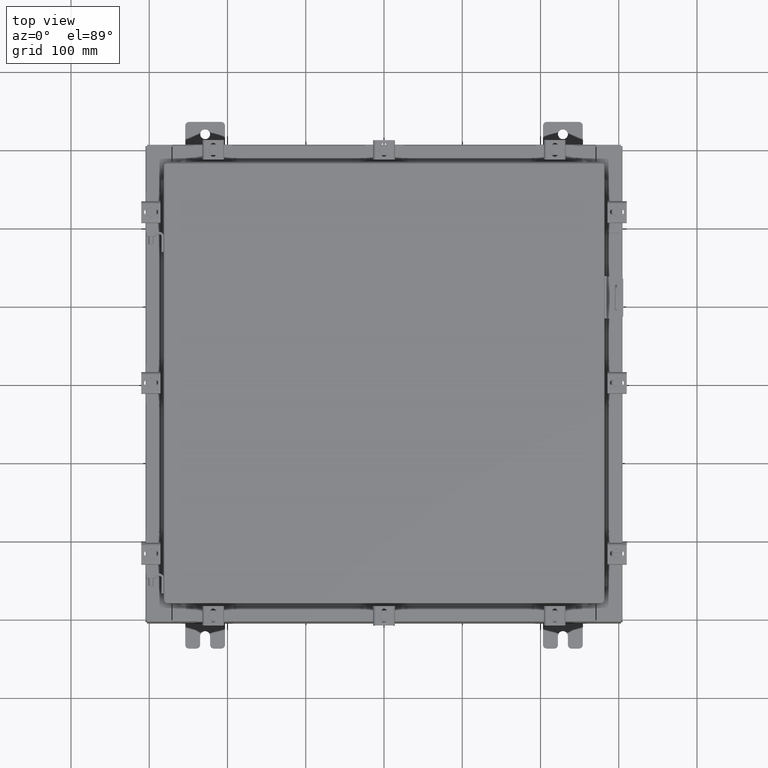
[diagram: clean part render]
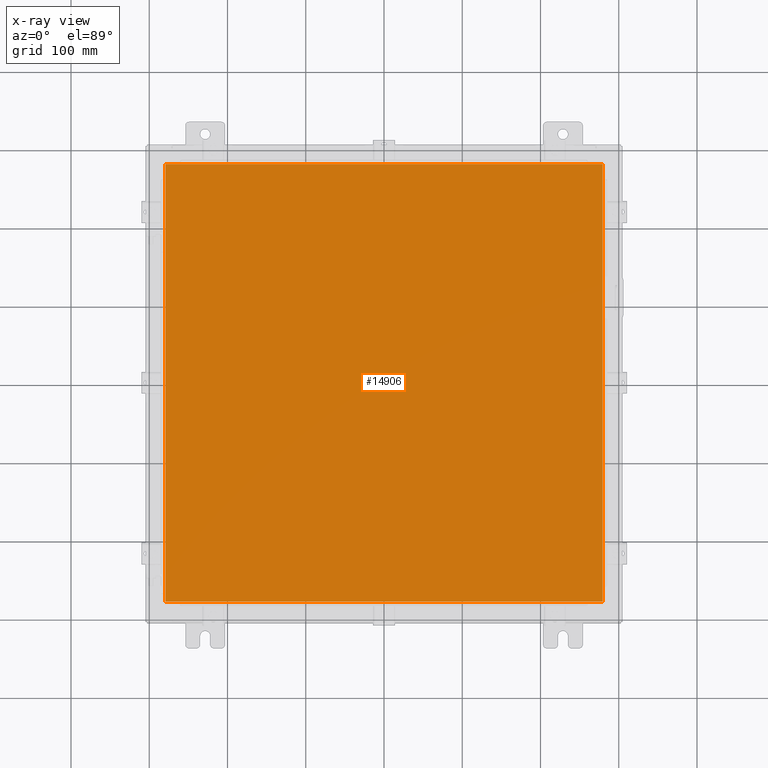
[diagram: x-ray — body ghosted, one internal face saturated and labeled with its STEP entity id]
A machine part, top view, then the same camera in x-ray: the body is ghosted and one INTERNAL B-rep face — a face not visible from any outside direction — is saturated and labeled: STEP entity #14906.
In plain terms, the highlighted planar face has unit normal (0, 0, -1).
Its self-contained STEP definition (entity closure, byte-faithful):
#1595 = CARTESIAN_POINT ( 'NONE',  ( -11.00630000000000300, -11.00630000000000100, -0.07470000000000015500 ) ) ;
#2173 = CARTESIAN_POINT ( 'NONE',  ( 11.00629999999999400, -11.00630000000000100, -0.07470000000000015500 ) ) ;
#2368 = DIRECTION ( 'NONE',  ( 0.0000000000000000000, 1.000000000000000000, 0.0000000000000000000 ) ) ;
#3639 = LINE ( 'NONE', #19274, #18130 ) ;
#3697 = VERTEX_POINT ( 'NONE', #6791 ) ;
#4250 = PLANE ( 'NONE',  #16784 ) ;
#4418 = EDGE_LOOP ( 'NONE', ( #15736, #10042, #5528, #13553 ) ) ;
#5471 = CARTESIAN_POINT ( 'NONE',  ( 11.00629999999999400, -11.00630000000000100, -0.07470000000000015500 ) ) ;
#5528 = ORIENTED_EDGE ( 'NONE', *, *, #13793, .F. ) ;
#6210 = CARTESIAN_POINT ( 'NONE',  ( -11.00630000000000300, 11.00629999999999600, -0.07470000000000015500 ) ) ;
#6791 = CARTESIAN_POINT ( 'NONE',  ( -11.00630000000000300, 11.00629999999999600, -0.07470000000000015500 ) ) ;
#6871 = CARTESIAN_POINT ( 'NONE',  ( 11.00629999999999400, 11.00629999999999600, -0.07470000000000015500 ) ) ;
#7066 = DIRECTION ( 'NONE',  ( -1.000000000000000000, -0.0000000000000000000, -0.0000000000000000000 ) ) ;
#7088 = DIRECTION ( 'NONE',  ( 1.000000000000000000, -0.0000000000000000000, -0.0000000000000000000 ) ) ;
#8641 = VERTEX_POINT ( 'NONE', #1595 ) ;
#9077 = VECTOR ( 'NONE', #2368, 39.37007874015748100 ) ;
#9534 = DIRECTION ( 'NONE',  ( -1.000000000000000000, 0.0000000000000000000, -0.0000000000000000000 ) ) ;
#10042 = ORIENTED_EDGE ( 'NONE', *, *, #16742, .F. ) ;
#10488 = LINE ( 'NONE', #6210, #19753 ) ;
#10534 = CARTESIAN_POINT ( 'NONE',  ( -11.00630000000000300, -11.00630000000000100, -0.07470000000000015500 ) ) ;
#10941 = VECTOR ( 'NONE', #7088, 39.37007874015748100 ) ;
#13204 = DIRECTION ( 'NONE',  ( 0.0000000000000000000, -1.000000000000000000, 0.0000000000000000000 ) ) ;
#13553 = ORIENTED_EDGE ( 'NONE', *, *, #22233, .F. ) ;
#13731 = LINE ( 'NONE', #5471, #9077 ) ;
#13793 = EDGE_CURVE ( 'NONE', #3697, #8641, #10488, .T. ) ;
#14794 = VERTEX_POINT ( 'NONE', #6871 ) ;
#14835 = EDGE_CURVE ( 'NONE', #20704, #14794, #13731, .T. ) ;
#14906 = ADVANCED_FACE ( 'NONE', ( #16719 ), #4250, .T. ) ;
#15736 = ORIENTED_EDGE ( 'NONE', *, *, #14835, .F. ) ;
#16719 = FACE_OUTER_BOUND ( 'NONE', #4418, .T. ) ;
#16742 = EDGE_CURVE ( 'NONE', #8641, #20704, #20217, .T. ) ;
#16784 = AXIS2_PLACEMENT_3D ( 'NONE', #18238, #19993, #9534 ) ;
#18130 = VECTOR ( 'NONE', #7066, 39.37007874015748100 ) ;
#18238 = CARTESIAN_POINT ( 'NONE',  ( 0.0000000000000000000, 0.0000000000000000000, -0.07470000000000015500 ) ) ;
#19274 = CARTESIAN_POINT ( 'NONE',  ( 11.00629999999999400, 11.00629999999999600, -0.07470000000000015500 ) ) ;
#19753 = VECTOR ( 'NONE', #13204, 39.37007874015748100 ) ;
#19993 = DIRECTION ( 'NONE',  ( 0.0000000000000000000, 0.0000000000000000000, -1.000000000000000000 ) ) ;
#20217 = LINE ( 'NONE', #10534, #10941 ) ;
#20704 = VERTEX_POINT ( 'NONE', #2173 ) ;
#22233 = EDGE_CURVE ( 'NONE', #14794, #3697, #3639, .T. ) ;